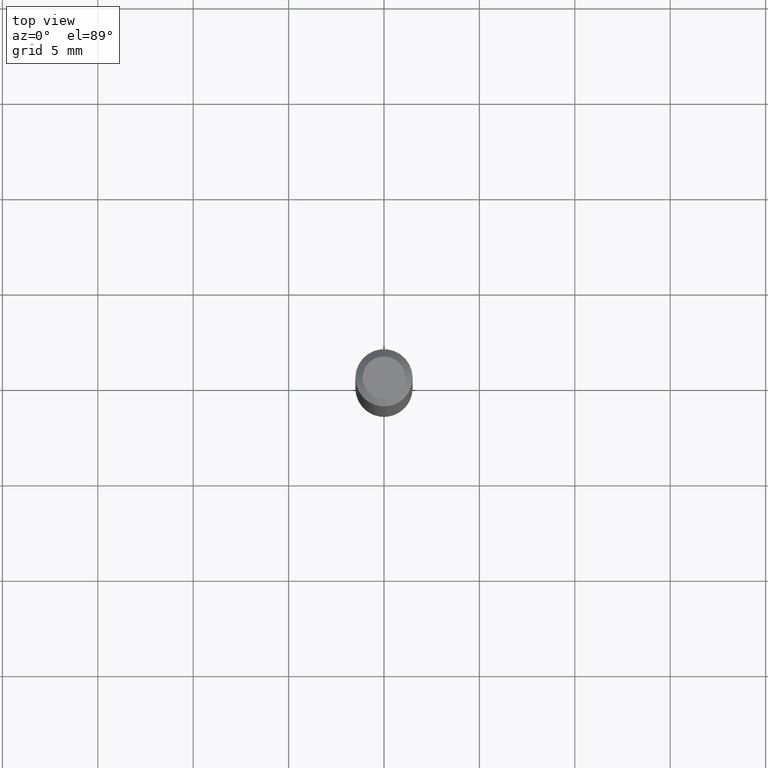
[diagram: clean part render]
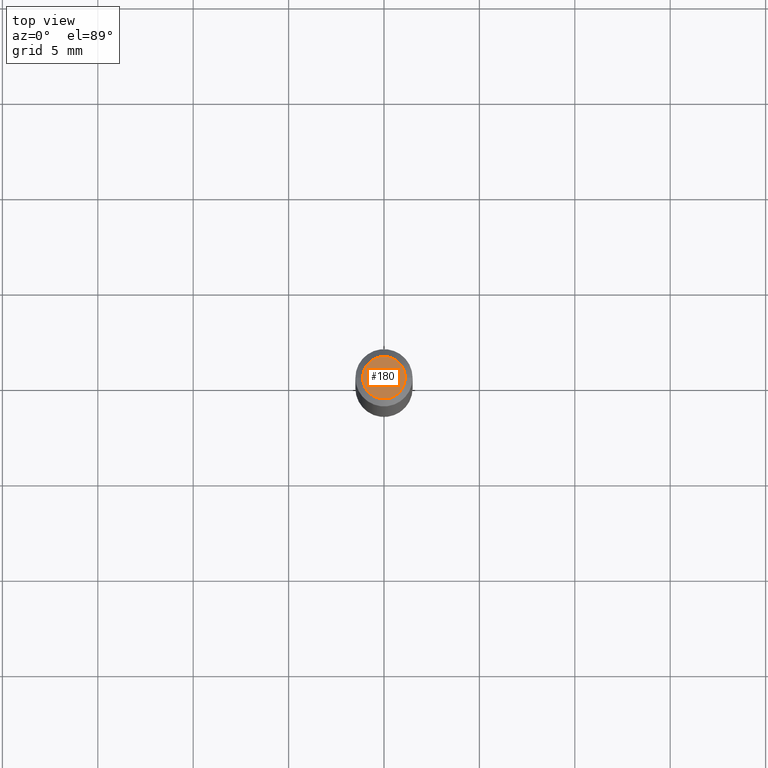
[diagram: same view with one face highlighted and labeled with its STEP entity id]
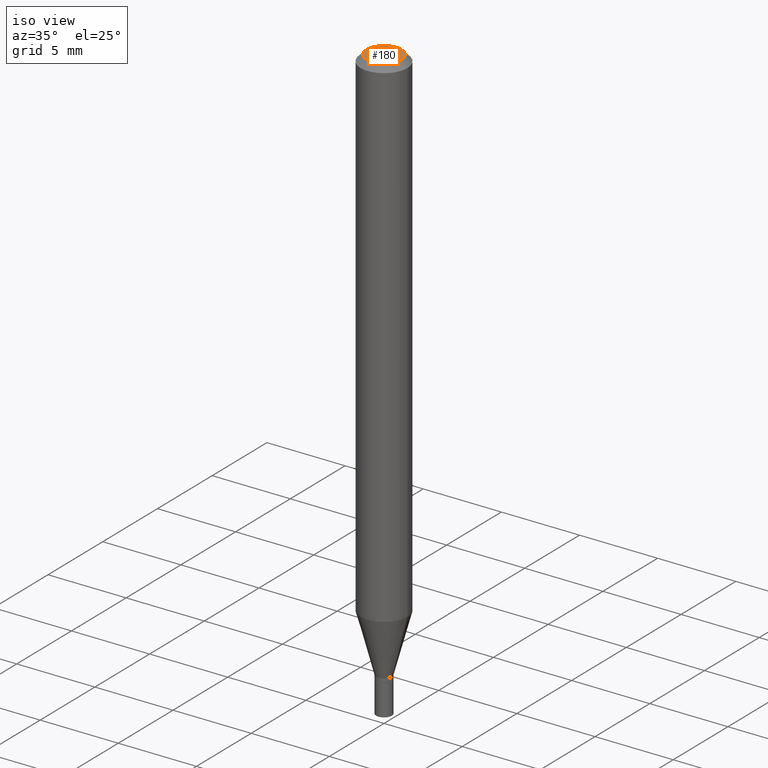
[diagram: same view with one face highlighted and labeled with its STEP entity id]
A machine part, top view. The second image highlights one B-rep face of the part: STEP entity #180.
A second angle (iso view) of the same face is appended — the face is thin or edge-on in the first view.
In plain terms, the highlighted planar face has unit normal (0, -0, -1).
Its self-contained STEP definition (entity closure, byte-faithful):
#2 = DIRECTION ( 'NONE',  ( 1.000000000000000000, -6.982962677686265922E-15, 4.819687581474398999E-29 ) ) ;
#22 = AXIS2_PLACEMENT_3D ( 'NONE', #54, #354, #95 ) ;
#26 = VERTEX_POINT ( 'NONE', #252 ) ;
#34 = ORIENTED_EDGE ( 'NONE', *, *, #267, .T. ) ;
#54 = CARTESIAN_POINT ( 'NONE',  ( 3.075995059520799729E-16, 0.04404999999999999888, 2.287766971589501637E-17 ) ) ;
#57 = VERTEX_POINT ( 'NONE', #115 ) ;
#65 = EDGE_LOOP ( 'NONE', ( #34, #266 ) ) ;
#95 = DIRECTION ( 'NONE',  ( -1.000000000000000000, 6.982962677686265922E-15, -4.876176775795935793E-29 ) ) ;
#110 = DIRECTION ( 'NONE',  ( -2.445468806185136597E-29, 3.491481338843145583E-15, 1.000000000000000000 ) ) ;
#115 = CARTESIAN_POINT ( 'NONE',  ( 0.04404999999999999888, -3.798447818264455642E-16, 3.533548453838735986E-16 ) ) ;
#116 = DIRECTION ( 'NONE',  ( -2.445468806185136597E-29, 3.491481338843145583E-15, 1.000000000000000000 ) ) ;
#180 = ADVANCED_FACE ( 'NONE', ( #424 ), #268, .F. ) ;
#196 = CARTESIAN_POINT ( 'NONE',  ( -8.641182519006289553E-45, 1.233731848647591164E-30, 3.533548453838711334E-16 ) ) ;
#252 = CARTESIAN_POINT ( 'NONE',  ( -0.04404999999999999888, 3.337856159934041534E-16, 3.533548453838689148E-16 ) ) ;
#266 = ORIENTED_EDGE ( 'NONE', *, *, #374, .T. ) ;
#267 = EDGE_CURVE ( 'NONE', #26, #57, #348, .T. ) ;
#268 = PLANE ( 'NONE',  #22 ) ;
#348 = CIRCLE ( 'NONE', #458, 0.04404999999999999888 ) ;
#354 = DIRECTION ( 'NONE',  ( 2.438088387897960049E-29, -3.491481338843145188E-15, -1.000000000000000000 ) ) ;
#365 = CARTESIAN_POINT ( 'NONE',  ( -8.641182519006289553E-45, 1.233731848647591164E-30, 3.533548453838711334E-16 ) ) ;
#374 = EDGE_CURVE ( 'NONE', #57, #26, #419, .T. ) ;
#400 = AXIS2_PLACEMENT_3D ( 'NONE', #365, #110, #402 ) ;
#402 = DIRECTION ( 'NONE',  ( 1.000000000000000000, -6.982962677686265922E-15, 4.819687581474398999E-29 ) ) ;
#419 = CIRCLE ( 'NONE', #400, 0.04404999999999999888 ) ;
#424 = FACE_OUTER_BOUND ( 'NONE', #65, .T. ) ;
#458 = AXIS2_PLACEMENT_3D ( 'NONE', #196, #116, #2 ) ;